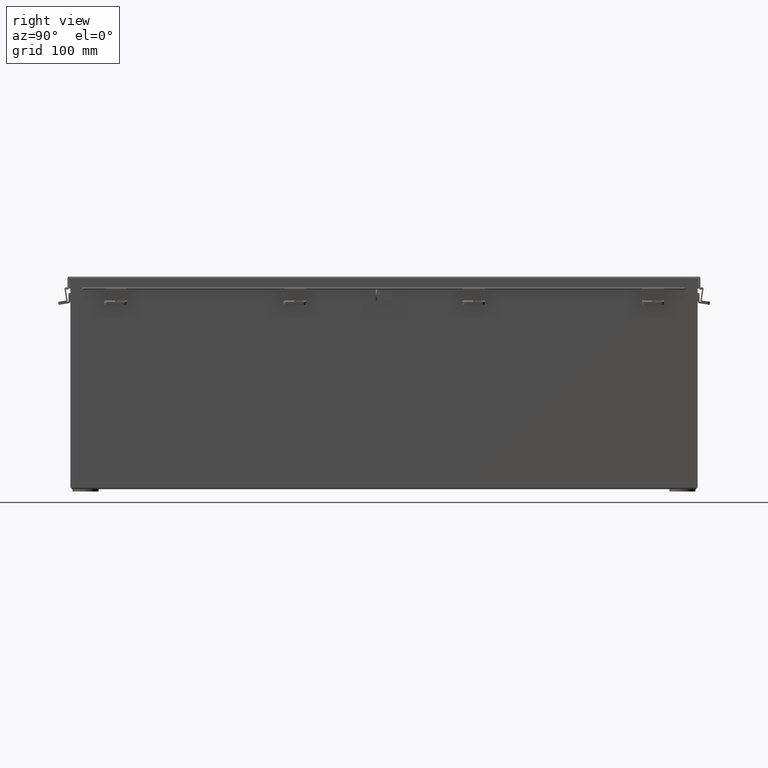
[diagram: clean part render]
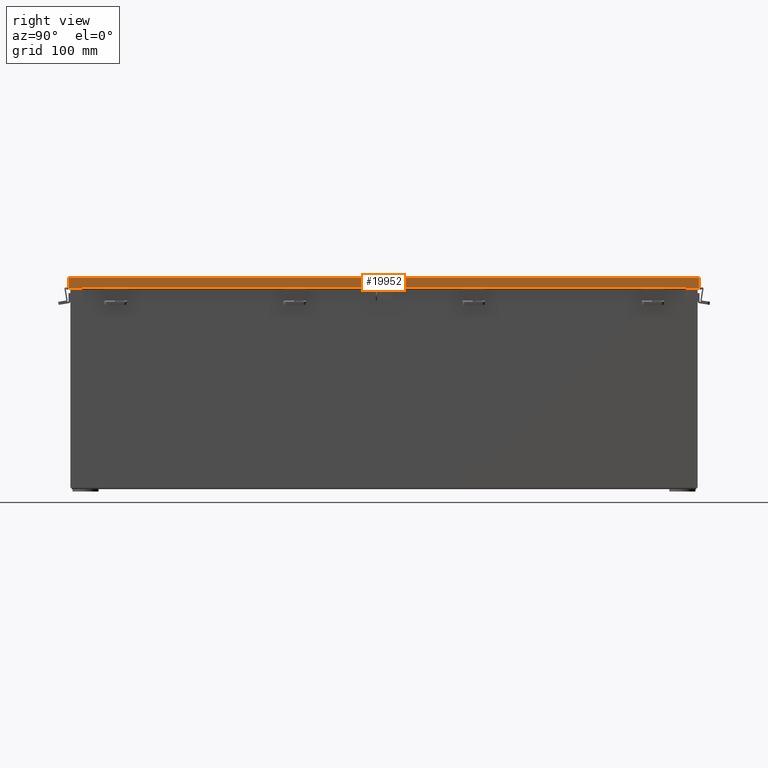
[diagram: same view with one face highlighted and labeled with its STEP entity id]
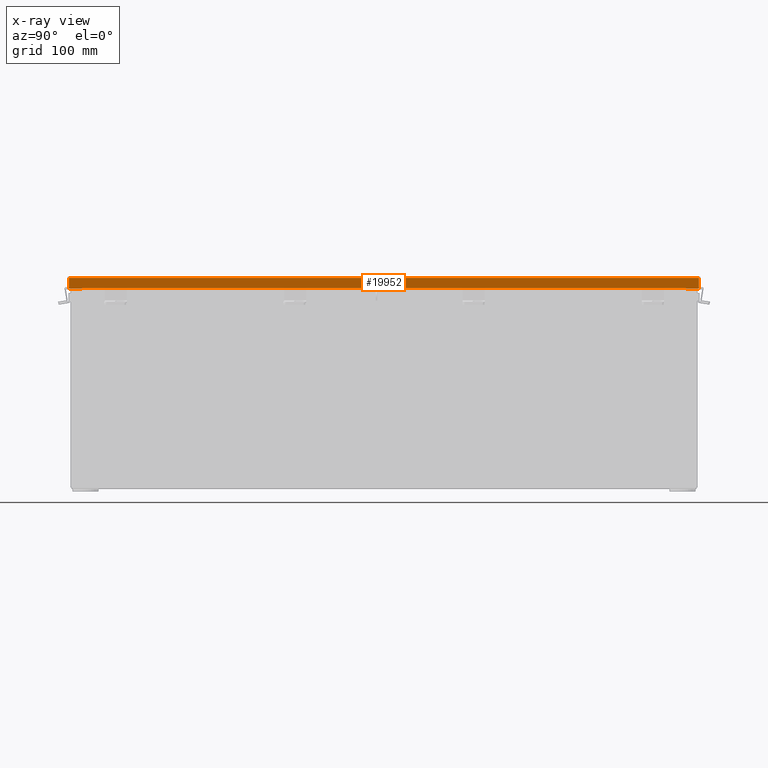
[diagram: x-ray of the same camera — body ghosted, the highlighted face saturated]
A machine part, right view. The second image highlights one B-rep face of the part: STEP entity #19952.
The next image is the same camera in x-ray: the body ghosted, the highlighted face saturated — about 0% of this face is hidden behind the body in this view.
In plain terms, the highlighted planar face has unit normal (-1, 0, -0).
Its self-contained STEP definition (entity closure, byte-faithful):
#316 = EDGE_CURVE ( 'NONE', #1113, #1539, #29132, .T. ) ;
#607 = VECTOR ( 'NONE', #12370, 39.37007874015748100 ) ;
#774 = LINE ( 'NONE', #11856, #18191 ) ;
#1113 = VERTEX_POINT ( 'NONE', #25325 ) ;
#1501 = EDGE_CURVE ( 'NONE', #1113, #7723, #17959, .T. ) ;
#1539 = VERTEX_POINT ( 'NONE', #29307 ) ;
#1697 = LINE ( 'NONE', #17662, #13081 ) ;
#3076 = EDGE_CURVE ( 'NONE', #20781, #15857, #18772, .T. ) ;
#4011 = VECTOR ( 'NONE', #28500, 39.37007874015748100 ) ;
#4673 = AXIS2_PLACEMENT_3D ( 'NONE', #17440, #8459, #24343 ) ;
#4850 = ORIENTED_EDGE ( 'NONE', *, *, #10769, .T. ) ;
#5613 = CARTESIAN_POINT ( 'NONE',  ( -6.156249999999993800, 0.0000000000000000000, 0.6123000000000005100 ) ) ;
#6892 = LINE ( 'NONE', #28359, #18239 ) ;
#7125 = ORIENTED_EDGE ( 'NONE', *, *, #22417, .F. ) ;
#7557 = ORIENTED_EDGE ( 'NONE', *, *, #25666, .F. ) ;
#7723 = VERTEX_POINT ( 'NONE', #10744 ) ;
#7877 = EDGE_LOOP ( 'NONE', ( #16185, #4850, #7557, #24866, #21011, #13671, #7125, #23108 ) ) ;
#8348 = DIRECTION ( 'NONE',  ( -3.569293475308526100E-015, 1.597443333072548900E-029, 1.000000000000000000 ) ) ;
#8459 = DIRECTION ( 'NONE',  ( 1.000000000000000000, 5.319100850303771400E-030, 3.569293475308526100E-015 ) ) ;
#10744 = CARTESIAN_POINT ( 'NONE',  ( -6.156249999999993800, -18.07447893218813900, 0.6123000000000005100 ) ) ;
#10769 = EDGE_CURVE ( 'NONE', #20781, #27622, #774, .T. ) ;
#11856 = CARTESIAN_POINT ( 'NONE',  ( -6.156249999999993800, 0.0000000000000000000, 0.6123000000000005100 ) ) ;
#11949 = VECTOR ( 'NONE', #13239, 39.37007874015748100 ) ;
#12370 = DIRECTION ( 'NONE',  ( 2.102977566036114000E-013, -1.597443333072548900E-029, -1.000000000000000000 ) ) ;
#13081 = VECTOR ( 'NONE', #15375, 39.37007874015748100 ) ;
#13177 = CARTESIAN_POINT ( 'NONE',  ( -6.156249999999993800, 17.32447893218812500, 0.6123000000000005100 ) ) ;
#13239 = DIRECTION ( 'NONE',  ( -3.569293475308526100E-015, 1.597443333072548900E-029, 1.000000000000000000 ) ) ;
#13671 = ORIENTED_EDGE ( 'NONE', *, *, #29210, .T. ) ;
#14279 = VERTEX_POINT ( 'NONE', #26718 ) ;
#14612 = CARTESIAN_POINT ( 'NONE',  ( -6.156249999999993800, -17.32447893218813600, 0.5967115427318782100 ) ) ;
#15375 = DIRECTION ( 'NONE',  ( -5.315277860228140500E-030, -1.000000000000000000, -1.597443333072548900E-029 ) ) ;
#15857 = VERTEX_POINT ( 'NONE', #15956 ) ;
#15956 = CARTESIAN_POINT ( 'NONE',  ( -6.156249999999993800, 17.32447893218812500, 0.5967115427318761000 ) ) ;
#16060 = LINE ( 'NONE', #5613, #4011 ) ;
#16185 = ORIENTED_EDGE ( 'NONE', *, *, #3076, .F. ) ;
#16943 = VECTOR ( 'NONE', #8348, 39.37007874015748100 ) ;
#16966 = VECTOR ( 'NONE', #23830, 39.37007874015748100 ) ;
#17440 = CARTESIAN_POINT ( 'NONE',  ( -6.156249999999991100, 0.0000000000000000000, -2.185478394931410600E-014 ) ) ;
#17662 = CARTESIAN_POINT ( 'NONE',  ( -6.156249999999993800, 17.32447893218812500, 0.5967115427318761000 ) ) ;
#17707 = CARTESIAN_POINT ( 'NONE',  ( -6.156249999999991100, -18.07447893218813900, -2.185478394931410600E-014 ) ) ;
#17959 = LINE ( 'NONE', #17707, #11949 ) ;
#18191 = VECTOR ( 'NONE', #27815, 39.37007874015748100 ) ;
#18239 = VECTOR ( 'NONE', #26054, 39.37007874015748100 ) ;
#18772 = LINE ( 'NONE', #26033, #607 ) ;
#19952 = ADVANCED_FACE ( 'NONE', ( #21994 ), #22067, .F. ) ;
#20781 = VERTEX_POINT ( 'NONE', #13177 ) ;
#21011 = ORIENTED_EDGE ( 'NONE', *, *, #1501, .T. ) ;
#21096 = CARTESIAN_POINT ( 'NONE',  ( -6.156249999999993800, 18.07447893218813200, 0.6123000000000005100 ) ) ;
#21953 = CARTESIAN_POINT ( 'NONE',  ( -6.156249999999991100, 18.07447893218813200, 0.0000000000000000000 ) ) ;
#21994 = FACE_OUTER_BOUND ( 'NONE', #7877, .T. ) ;
#22067 = PLANE ( 'NONE',  #4673 ) ;
#22417 = EDGE_CURVE ( 'NONE', #28831, #14279, #6892, .T. ) ;
#23108 = ORIENTED_EDGE ( 'NONE', *, *, #25099, .F. ) ;
#23830 = DIRECTION ( 'NONE',  ( 5.211708260985339900E-030, 1.000000000000000000, -3.009264571332532000E-017 ) ) ;
#24343 = DIRECTION ( 'NONE',  ( 3.569293475308526100E-015, -1.597443333072548900E-029, -1.000000000000000000 ) ) ;
#24866 = ORIENTED_EDGE ( 'NONE', *, *, #316, .F. ) ;
#25099 = EDGE_CURVE ( 'NONE', #15857, #28831, #1697, .T. ) ;
#25325 = CARTESIAN_POINT ( 'NONE',  ( -6.156249999999991100, -18.07447893218813900, 0.01300000000000229300 ) ) ;
#25666 = EDGE_CURVE ( 'NONE', #1539, #27622, #28404, .T. ) ;
#26033 = CARTESIAN_POINT ( 'NONE',  ( -6.156249999999997300, 17.32447893218812500, 0.6122999999999982900 ) ) ;
#26054 = DIRECTION ( 'NONE',  ( -7.009925220119888100E-014, -1.401985044023977600E-013, 1.000000000000000000 ) ) ;
#26151 = CARTESIAN_POINT ( 'NONE',  ( -6.156250000000000900, 18.15624999999999600, 0.01300000000000010700 ) ) ;
#26718 = CARTESIAN_POINT ( 'NONE',  ( -6.156249999999993800, -17.32447893218813900, 0.6123000000000005100 ) ) ;
#27622 = VERTEX_POINT ( 'NONE', #21096 ) ;
#27815 = DIRECTION ( 'NONE',  ( 5.315277860228140500E-030, 1.000000000000000000, 1.597443333072548900E-029 ) ) ;
#28359 = CARTESIAN_POINT ( 'NONE',  ( -6.156249999999993800, -17.32447893218813600, 0.5967115427318782100 ) ) ;
#28404 = LINE ( 'NONE', #21953, #16943 ) ;
#28500 = DIRECTION ( 'NONE',  ( 5.315277860228140500E-030, 1.000000000000000000, 1.597443333072548900E-029 ) ) ;
#28831 = VERTEX_POINT ( 'NONE', #14612 ) ;
#29132 = LINE ( 'NONE', #26151, #16966 ) ;
#29210 = EDGE_CURVE ( 'NONE', #7723, #14279, #16060, .T. ) ;
#29307 = CARTESIAN_POINT ( 'NONE',  ( -6.156249999999991100, 18.07447893218813200, 0.01300000000000010700 ) ) ;